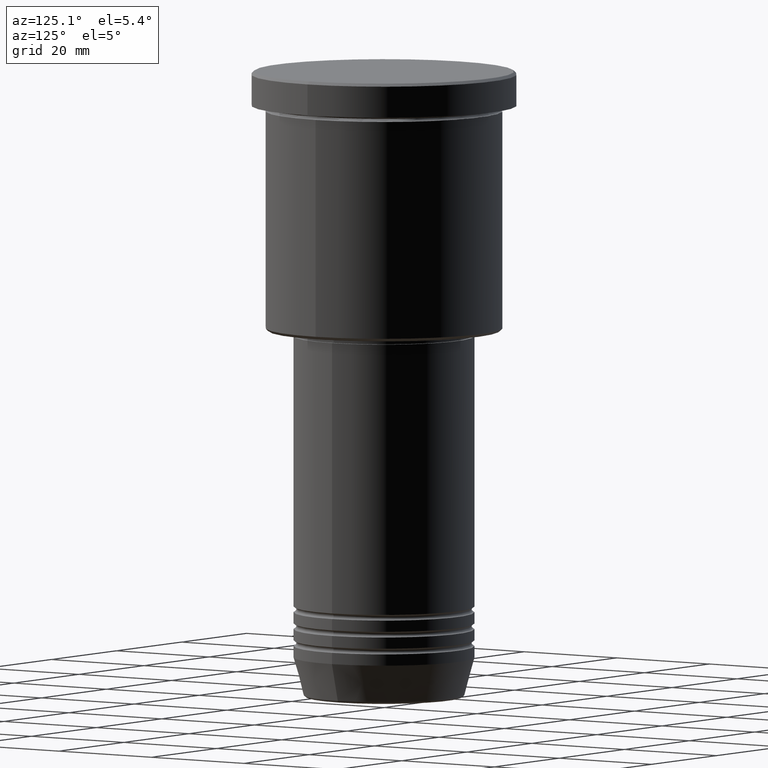
[diagram: clean part render]
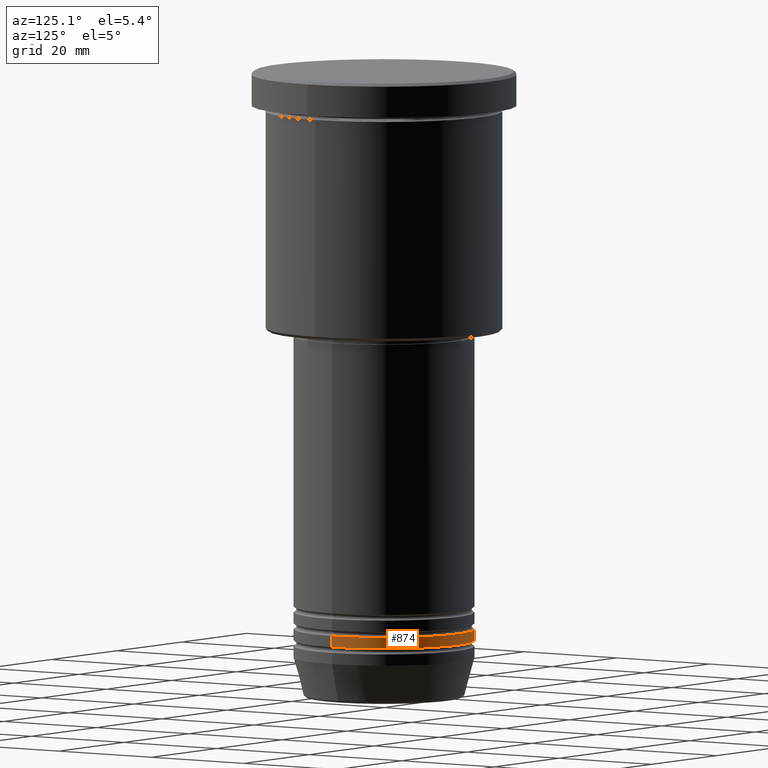
[diagram: same view with one face highlighted and labeled with its STEP entity id]
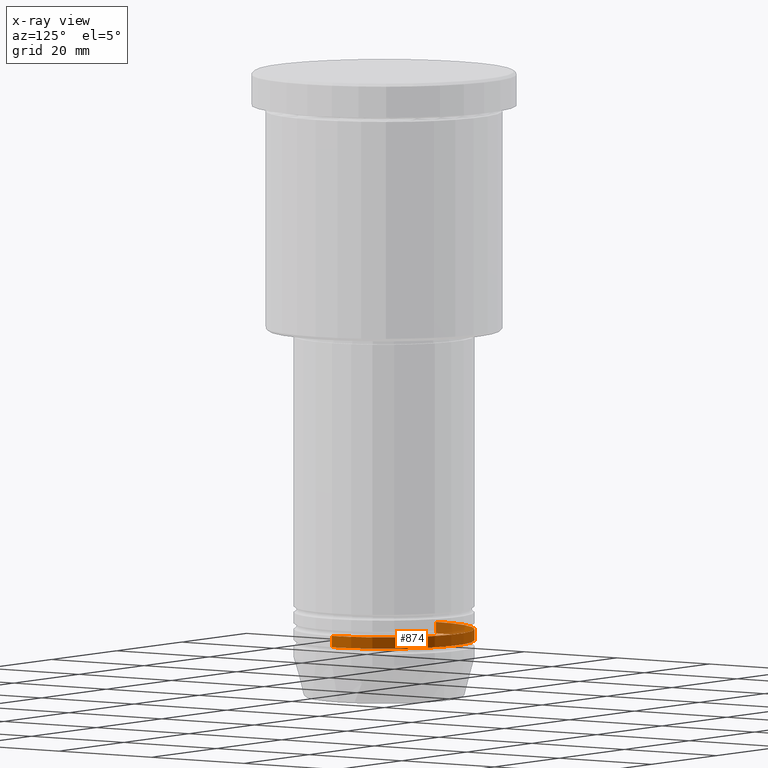
[diagram: x-ray of the same camera — body ghosted, the highlighted face saturated]
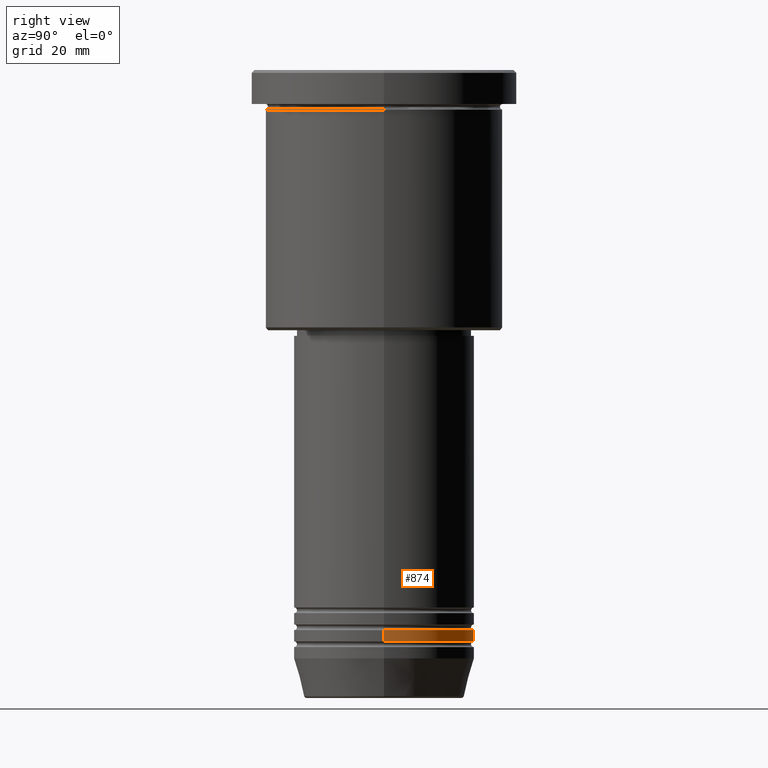
[diagram: same view with one face highlighted and labeled with its STEP entity id]
A machine part, auxiliary view. The second image highlights one B-rep face of the part: STEP entity #874.
The next image is the same camera in x-ray: the body ghosted, the highlighted face saturated — about 16% of this face is hidden behind the body in this view.
A second angle (right view) of the same face is appended — the face is thin or edge-on in the first view.
In plain terms, the highlighted cylindrical surface (partial cylindrical patch) has radius 16 mm, axis along (-0, -0, 1).
Its self-contained STEP definition (entity closure, byte-faithful):
#28 = CARTESIAN_POINT ( 'NONE',  ( 16.00000000000000000, 0.000000000000000000, 0.000000000000000000 ) ) ;
#35 = CARTESIAN_POINT ( 'NONE',  ( -16.00000000000000000, 1.959434878635765131E-15, -100.9999999999999716 ) ) ;
#93 = CARTESIAN_POINT ( 'NONE',  ( 0.000000000000000000, 0.000000000000000000, 0.000000000000000000 ) ) ;
#94 = EDGE_LOOP ( 'NONE', ( #823, #620, #370, #128 ) ) ;
#121 = LINE ( 'NONE', #28, #327 ) ;
#128 = ORIENTED_EDGE ( 'NONE', *, *, #1029, .F. ) ;
#176 = VERTEX_POINT ( 'NONE', #35 ) ;
#184 = CARTESIAN_POINT ( 'NONE',  ( 16.00000000000000000, 0.000000000000000000, -98.99999999999998579 ) ) ;
#190 = AXIS2_PLACEMENT_3D ( 'NONE', #93, #722, #988 ) ;
#260 = FACE_OUTER_BOUND ( 'NONE', #94, .T. ) ;
#327 = VECTOR ( 'NONE', #850, 1000.000000000000000 ) ;
#370 = ORIENTED_EDGE ( 'NONE', *, *, #896, .F. ) ;
#379 = LINE ( 'NONE', #399, #1080 ) ;
#399 = CARTESIAN_POINT ( 'NONE',  ( -16.00000000000000000, 1.959434878635765131E-15, 0.000000000000000000 ) ) ;
#433 = CARTESIAN_POINT ( 'NONE',  ( -16.00000000000000000, 1.959434878635765131E-15, -98.99999999999998579 ) ) ;
#564 = AXIS2_PLACEMENT_3D ( 'NONE', #776, #1139, #953 ) ;
#568 = EDGE_CURVE ( 'NONE', #176, #918, #379, .T. ) ;
#581 = AXIS2_PLACEMENT_3D ( 'NONE', #1065, #1161, #1086 ) ;
#620 = ORIENTED_EDGE ( 'NONE', *, *, #568, .T. ) ;
#642 = CYLINDRICAL_SURFACE ( 'NONE', #190, 16.00000000000000000 ) ;
#671 = CIRCLE ( 'NONE', #564, 16.00000000000000000 ) ;
#722 = DIRECTION ( 'NONE',  ( -0.000000000000000000, -0.000000000000000000, 1.000000000000000000 ) ) ;
#776 = CARTESIAN_POINT ( 'NONE',  ( 0.000000000000000000, 0.000000000000000000, -100.9999999999999716 ) ) ;
#805 = VERTEX_POINT ( 'NONE', #184 ) ;
#823 = ORIENTED_EDGE ( 'NONE', *, *, #1132, .T. ) ;
#850 = DIRECTION ( 'NONE',  ( -0.000000000000000000, -0.000000000000000000, 1.000000000000000000 ) ) ;
#874 = ADVANCED_FACE ( 'NONE', ( #260 ), #642, .T. ) ;
#896 = EDGE_CURVE ( 'NONE', #805, #918, #1082, .T. ) ;
#918 = VERTEX_POINT ( 'NONE', #433 ) ;
#929 = DIRECTION ( 'NONE',  ( -0.000000000000000000, -0.000000000000000000, 1.000000000000000000 ) ) ;
#953 = DIRECTION ( 'NONE',  ( 1.000000000000000000, 0.000000000000000000, 0.000000000000000000 ) ) ;
#988 = DIRECTION ( 'NONE',  ( 1.000000000000000000, 0.000000000000000000, 0.000000000000000000 ) ) ;
#1029 = EDGE_CURVE ( 'NONE', #1068, #805, #121, .T. ) ;
#1065 = CARTESIAN_POINT ( 'NONE',  ( 0.000000000000000000, 0.000000000000000000, -98.99999999999998579 ) ) ;
#1068 = VERTEX_POINT ( 'NONE', #1118 ) ;
#1080 = VECTOR ( 'NONE', #929, 1000.000000000000000 ) ;
#1082 = CIRCLE ( 'NONE', #581, 16.00000000000000000 ) ;
#1086 = DIRECTION ( 'NONE',  ( 1.000000000000000000, 0.000000000000000000, 0.000000000000000000 ) ) ;
#1118 = CARTESIAN_POINT ( 'NONE',  ( 16.00000000000000000, 0.000000000000000000, -100.9999999999999716 ) ) ;
#1132 = EDGE_CURVE ( 'NONE', #1068, #176, #671, .T. ) ;
#1139 = DIRECTION ( 'NONE',  ( -0.000000000000000000, -0.000000000000000000, 1.000000000000000000 ) ) ;
#1161 = DIRECTION ( 'NONE',  ( -0.000000000000000000, -0.000000000000000000, 1.000000000000000000 ) ) ;